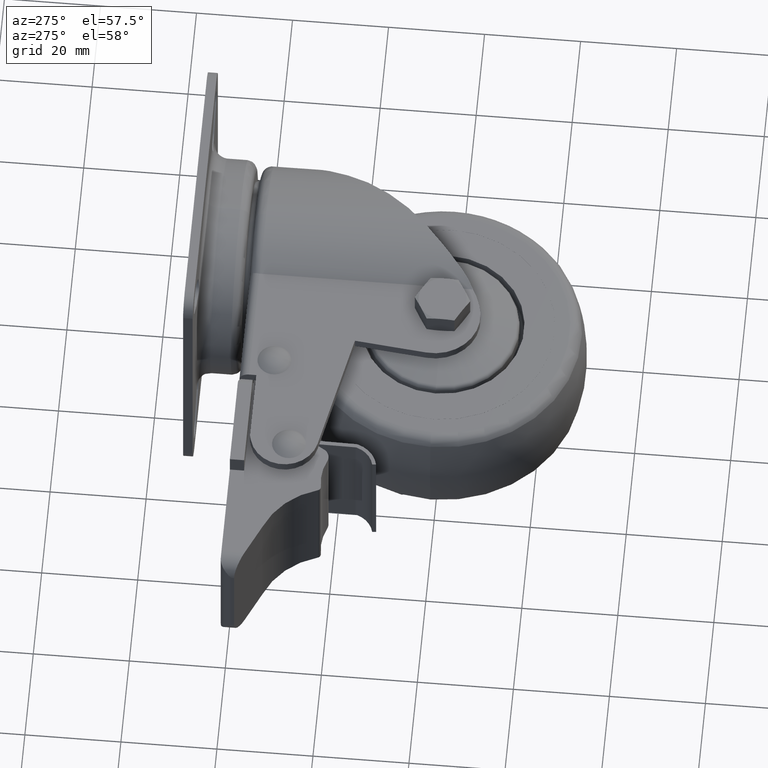
[diagram: clean part render]
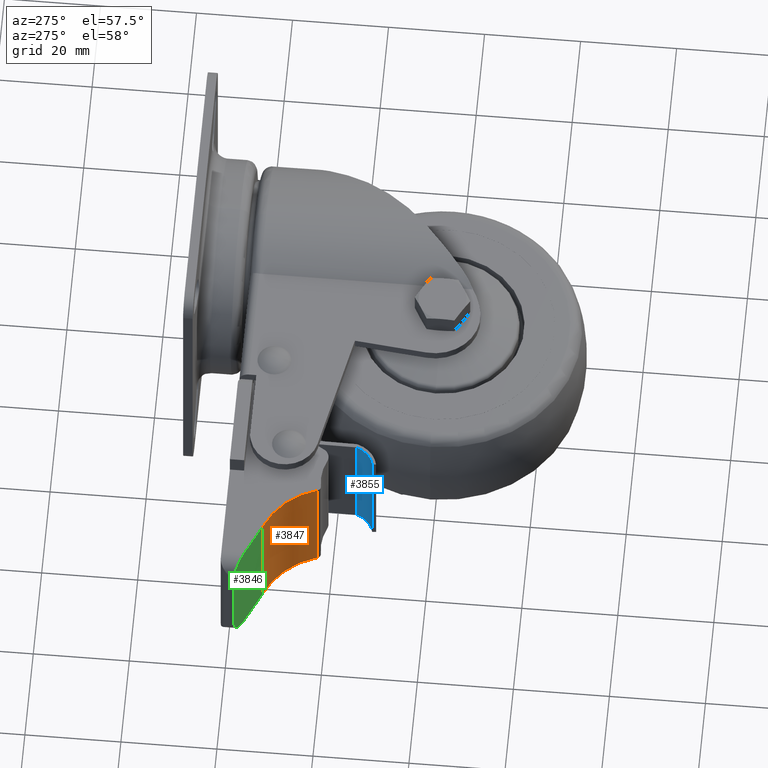
[diagram: same view with three faces highlighted in distinct colors, each labeled with its STEP entity id]
A machine part, auxiliary view with three faces highlighted in distinct colors.
Their STEP definitions:

[orange] entity #3847 — the highlighted cylindrical surface (partial cylindrical patch) has radius 16.9167 mm, axis along (0, 0, -1).
#217=LINE('',#6397,#448);
#219=LINE('',#6403,#450);
#448=VECTOR('',#5108,1000.);
#450=VECTOR('',#5114,1000.);
#656=CYLINDRICAL_SURFACE('',#4394,16.9166736044272);
#927=FACE_OUTER_BOUND('',#1181,.T.);
#1181=EDGE_LOOP('',(#2883,#2884,#2885,#2886));
#1448=CIRCLE('',#4395,16.9166736044272);
#1449=CIRCLE('',#4396,16.9166736044272);
#1754=VERTEX_POINT('',#6394);
#1755=VERTEX_POINT('',#6396);
#1756=VERTEX_POINT('',#6400);
#1757=VERTEX_POINT('',#6402);
#2175=EDGE_CURVE('',#1755,#1754,#217,.T.);
#2177=EDGE_CURVE('',#1756,#1754,#1448,.T.);
#2178=EDGE_CURVE('',#1757,#1756,#219,.T.);
#2179=EDGE_CURVE('',#1757,#1755,#1449,.T.);
#2883=ORIENTED_EDGE('',*,*,#2177,.F.);
#2884=ORIENTED_EDGE('',*,*,#2178,.F.);
#2885=ORIENTED_EDGE('',*,*,#2179,.T.);
#2886=ORIENTED_EDGE('',*,*,#2175,.T.);
#3847=ADVANCED_FACE('',(#927),#656,.F.);
#4394=AXIS2_PLACEMENT_3D('',#6399,#5110,#5111);
#4395=AXIS2_PLACEMENT_3D('',#6401,#5112,#5113);
#4396=AXIS2_PLACEMENT_3D('',#6404,#5115,#5116);
#5108=DIRECTION('',(0.,0.,-1.));
#5110=DIRECTION('center_axis',(0.,0.,-1.));
#5111=DIRECTION('ref_axis',(-1.,0.,0.));
#5112=DIRECTION('center_axis',(0.,0.,1.));
#5113=DIRECTION('ref_axis',(1.,0.,0.));
#5114=DIRECTION('',(0.,0.,-1.));
#5115=DIRECTION('center_axis',(0.,0.,1.));
#5116=DIRECTION('ref_axis',(1.,0.,0.));
#6394=CARTESIAN_POINT('',(-17.9300000000001,3.92919999999996,-13.));
#6396=CARTESIAN_POINT('',(-17.9300000000001,3.92919999999996,13.));
#6397=CARTESIAN_POINT('',(-17.9300000000001,3.92919999999996,13.));
#6399=CARTESIAN_POINT('Origin',(-24.1205896953941,-11.8140666579083,13.));
#6400=CARTESIAN_POINT('',(-8.00271056367863,-6.67715920943943,-13.));
#6401=CARTESIAN_POINT('Origin',(-24.1205896953941,-11.8140666579083,-13.));
#6402=CARTESIAN_POINT('',(-8.00271056367863,-6.67715920943943,13.));
#6403=CARTESIAN_POINT('',(-8.00271056367863,-6.67715920943943,13.));
#6404=CARTESIAN_POINT('Origin',(-24.1205896953941,-11.8140666579083,13.));

[blue] entity #3855 — the highlighted cylindrical surface (edge-blend (fillet) strip) has radius 5.2919 mm, axis along (0, 0, -1).
#232=LINE('',#6445,#463);
#233=LINE('',#6451,#464);
#463=VECTOR('',#5157,1000.);
#464=VECTOR('',#5164,1000.);
#661=CYLINDRICAL_SURFACE('',#4412,5.29194732913295);
#935=FACE_OUTER_BOUND('',#1189,.T.);
#1189=EDGE_LOOP('',(#2915,#2916,#2917,#2918));
#1458=CIRCLE('',#4413,5.29194732913295);
#1459=CIRCLE('',#4414,5.29194732913295);
#1770=VERTEX_POINT('',#6442);
#1771=VERTEX_POINT('',#6444);
#1772=VERTEX_POINT('',#6448);
#1773=VERTEX_POINT('',#6450);
#2199=EDGE_CURVE('',#1771,#1770,#232,.T.);
#2201=EDGE_CURVE('',#1772,#1770,#1458,.T.);
#2202=EDGE_CURVE('',#1773,#1772,#233,.T.);
#2203=EDGE_CURVE('',#1773,#1771,#1459,.T.);
#2915=ORIENTED_EDGE('',*,*,#2201,.F.);
#2916=ORIENTED_EDGE('',*,*,#2202,.F.);
#2917=ORIENTED_EDGE('',*,*,#2203,.T.);
#2918=ORIENTED_EDGE('',*,*,#2199,.T.);
#3855=ADVANCED_FACE('',(#935),#661,.F.);
#4412=AXIS2_PLACEMENT_3D('',#6447,#5160,#5161);
#4413=AXIS2_PLACEMENT_3D('',#6449,#5162,#5163);
#4414=AXIS2_PLACEMENT_3D('',#6452,#5165,#5166);
#5157=DIRECTION('',(0.,0.,-1.));
#5160=DIRECTION('center_axis',(0.,0.,-1.));
#5161=DIRECTION('ref_axis',(-1.,0.,0.));
#5162=DIRECTION('center_axis',(0.,0.,1.));
#5163=DIRECTION('ref_axis',(1.,0.,0.));
#5164=DIRECTION('',(0.,0.,-1.));
#5165=DIRECTION('center_axis',(0.,0.,1.));
#5166=DIRECTION('ref_axis',(1.,0.,0.));
#6442=CARTESIAN_POINT('',(3.1290719956723,-13.9240144424316,-13.));
#6444=CARTESIAN_POINT('',(3.1290719956723,-13.9240144424316,13.));
#6445=CARTESIAN_POINT('',(3.1290719956723,-13.9240144424316,13.));
#6447=CARTESIAN_POINT('Origin',(-1.89179180680016,-12.2519997261868,13.));
#6448=CARTESIAN_POINT('',(-0.700000000000054,-17.408,-13.));
#6449=CARTESIAN_POINT('Origin',(-1.89179180680016,-12.2519997261868,-13.));
#6450=CARTESIAN_POINT('',(-0.700000000000054,-17.408,13.));
#6451=CARTESIAN_POINT('',(-0.700000000000054,-17.408,13.));
#6452=CARTESIAN_POINT('Origin',(-1.89179180680016,-12.2519997261868,13.));

[green] entity #3846 — the highlighted planar face has unit normal (0.4277, 0.9039, 0).
#49=ELLIPSE('',#4392,4.42508398290681,4.);
#50=ELLIPSE('',#4393,4.42508398290681,4.);
#213=LINE('',#6386,#444);
#216=LINE('',#6395,#447);
#217=LINE('',#6397,#448);
#218=LINE('',#6398,#449);
#444=VECTOR('',#5098,1000.);
#447=VECTOR('',#5107,1000.);
#448=VECTOR('',#5108,1000.);
#449=VECTOR('',#5109,1000.);
#782=PLANE('',#4391);
#926=FACE_OUTER_BOUND('',#1180,.T.);
#1180=EDGE_LOOP('',(#2877,#2878,#2879,#2880,#2881,#2882));
#1750=VERTEX_POINT('',#6384);
#1751=VERTEX_POINT('',#6385);
#1752=VERTEX_POINT('',#6390);
#1753=VERTEX_POINT('',#6392);
#1754=VERTEX_POINT('',#6394);
#1755=VERTEX_POINT('',#6396);
#2169=EDGE_CURVE('',#1750,#1751,#213,.T.);
#2172=EDGE_CURVE('',#1750,#1752,#49,.T.);
#2173=EDGE_CURVE('',#1753,#1751,#50,.T.);
#2174=EDGE_CURVE('',#1753,#1754,#216,.T.);
#2175=EDGE_CURVE('',#1755,#1754,#217,.T.);
#2176=EDGE_CURVE('',#1752,#1755,#218,.T.);
#2877=ORIENTED_EDGE('',*,*,#2172,.F.);
#2878=ORIENTED_EDGE('',*,*,#2169,.T.);
#2879=ORIENTED_EDGE('',*,*,#2173,.F.);
#2880=ORIENTED_EDGE('',*,*,#2174,.T.);
#2881=ORIENTED_EDGE('',*,*,#2175,.F.);
#2882=ORIENTED_EDGE('',*,*,#2176,.F.);
#3846=ADVANCED_FACE('',(#926),#782,.F.);
#4391=AXIS2_PLACEMENT_3D('',#6389,#5101,#5102);
#4392=AXIS2_PLACEMENT_3D('',#6391,#5103,#5104);
#4393=AXIS2_PLACEMENT_3D('',#6393,#5105,#5106);
#5098=DIRECTION('',(0.,0.,-1.));
#5101=DIRECTION('center_axis',(0.427664274494227,0.903937646257377,0.));
#5102=DIRECTION('ref_axis',(-0.903937646257377,0.427664274494227,0.));
#5103=DIRECTION('center_axis',(0.427664274494227,0.903937646257377,0.));
#5104=DIRECTION('ref_axis',(-0.903937646257377,0.427664274494227,0.));
#5105=DIRECTION('center_axis',(0.427664274494227,0.903937646257377,0.));
#5106=DIRECTION('ref_axis',(-0.903937646257377,0.427664274494227,0.));
#5107=DIRECTION('',(0.903937646257377,-0.427664274494227,0.));
#5108=DIRECTION('',(0.,0.,-1.));
#5109=DIRECTION('',(0.903937646257377,-0.427664274494227,0.));
#6384=CARTESIAN_POINT('',(-28.5,8.93,9.));
#6385=CARTESIAN_POINT('',(-28.5,8.93,-9.));
#6386=CARTESIAN_POINT('',(-28.5,8.93,13.));
#6389=CARTESIAN_POINT('Origin',(-28.5,8.93,13.));
#6390=CARTESIAN_POINT('',(-24.5,7.03754966887414,13.));
#6391=CARTESIAN_POINT('Origin',(-24.5,7.03754966887414,9.));
#6392=CARTESIAN_POINT('',(-24.5,7.03754966887414,-13.));
#6393=CARTESIAN_POINT('Origin',(-24.5,7.03754966887414,-9.));
#6394=CARTESIAN_POINT('',(-17.9300000000001,3.92919999999996,-13.));
#6395=CARTESIAN_POINT('',(-28.5,8.93,-13.));
#6396=CARTESIAN_POINT('',(-17.9300000000001,3.92919999999996,13.));
#6397=CARTESIAN_POINT('',(-17.9300000000001,3.92919999999996,13.));
#6398=CARTESIAN_POINT('',(-28.5,8.93,13.));